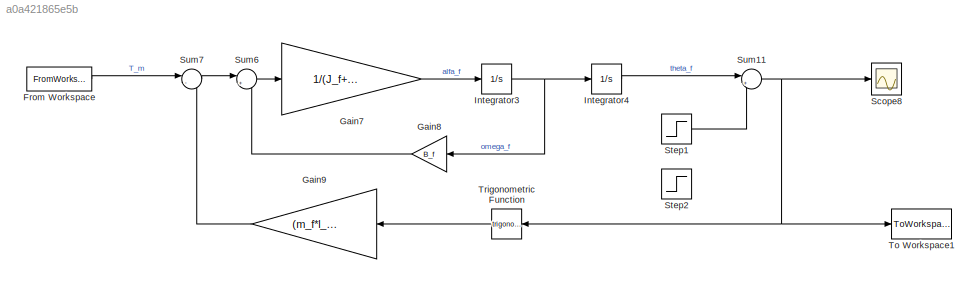
MODEL slx_a0a421865e5b
KIND model
CONFIG AbsTol = auto
CONFIG FixedStep = auto
CONFIG MaxStep = auto
CONFIG MinStep = auto
CONFIG RelTol = 1e-3
CONFIG SampleTimeConstraint = Unconstrained
CONFIG Solver = ode45
CONFIG SolverMode = Auto
CONFIG SolverName = ode45
CONFIG StartTime = 0.0
CONFIG StopTime = 5.91
BLOCK [FromWorkspace] From Workspace
  SampleTime = 0.01
  VariableName = uin
  ZeroCross = on
BLOCK [Gain] Gain7
  Gain = 1/(J_f+J_w+m_w*l_w^2)
  OutDataTypeStr = Inherit: Inherit via internal rule
  ParamDataTypeStr = Inherit: Inherit via internal rule
  SaturateOnIntegerOverflow = off
BLOCK [Gain] Gain8
  Gain = B_f
  OutDataTypeStr = Inherit: Inherit via internal rule
  ParamDataTypeStr = Inherit: Inherit via internal rule
  SaturateOnIntegerOverflow = off
BLOCK [Gain] Gain9
  Gain = (m_f*l_f+m_w*l_w)*g
  OutDataTypeStr = Inherit: Inherit via internal rule
  ParamDataTypeStr = Inherit: Inherit via internal rule
  SaturateOnIntegerOverflow = off
BLOCK [Integrator] Integrator3
  Ports = [1, 1]
BLOCK [Integrator] Integrator4
  Ports = [1, 1]
BLOCK [Scope] Scope8
  DataFormat = StructureWithTime
  Floating = off
  NumInputPorts = 1
  Ports = [1]
  SaveName = ScopeData6
  YMax = 10
  YMin = -10
BLOCK [Step] Step1
  After = 0.1487
  SampleTime = 0
  Time = 0
BLOCK [Step] Step2
  After = -pi/4
  SampleTime = 0
  Time = 0
BLOCK [Sum] Sum11
  IconShape = round
  InputSameDT = off
  Inputs = |++
  OutDataTypeStr = Inherit: Inherit via internal rule
  Ports = [2, 1]
  SaturateOnIntegerOverflow = off
BLOCK [Sum] Sum6
  IconShape = round
  InputSameDT = off
  Inputs = |+-
  OutDataTypeStr = Inherit: Inherit via internal rule
  Ports = [2, 1]
  SaturateOnIntegerOverflow = off
BLOCK [Sum] Sum7
  IconShape = round
  InputSameDT = off
  Inputs = |--
  OutDataTypeStr = Inherit: Inherit via internal rule
  Ports = [2, 1]
  SaturateOnIntegerOverflow = off
BLOCK [ToWorkspace] To Workspace1
  FixptAsFi = on
  MaxDataPoints = inf
  Ports = [1]
  SampleTime = 0.01
  Save2DSignal = 3-D array (concatenate along third dimension)
  VariableName = output
BLOCK [Trigonometry] Trigonometric Function
  Ports = [1, 1]
LINE From Workspace:1 -> Sum7:1
LINE Gain7:1 -> Integrator3:1
LINE Gain8:1 -> Sum6:2
LINE Gain9:1 -> Sum7:2
NET Integrator3:1 -> Gain8:1, Integrator4:1
LINE Integrator4:1 -> Sum11:1
LINE Step1:1 -> Sum11:2
NET Sum11:1 -> Scope8:1, To Workspace1:1, Trigonometric Function:1
LINE Sum6:1 -> Gain7:1
LINE Sum7:1 -> Sum6:1
LINE Trigonometric Function:1 -> Gain9:1
note: NET lines group one-source signal fan-out (src -> all destinations, sorted); 1:1 wires keep LINE
